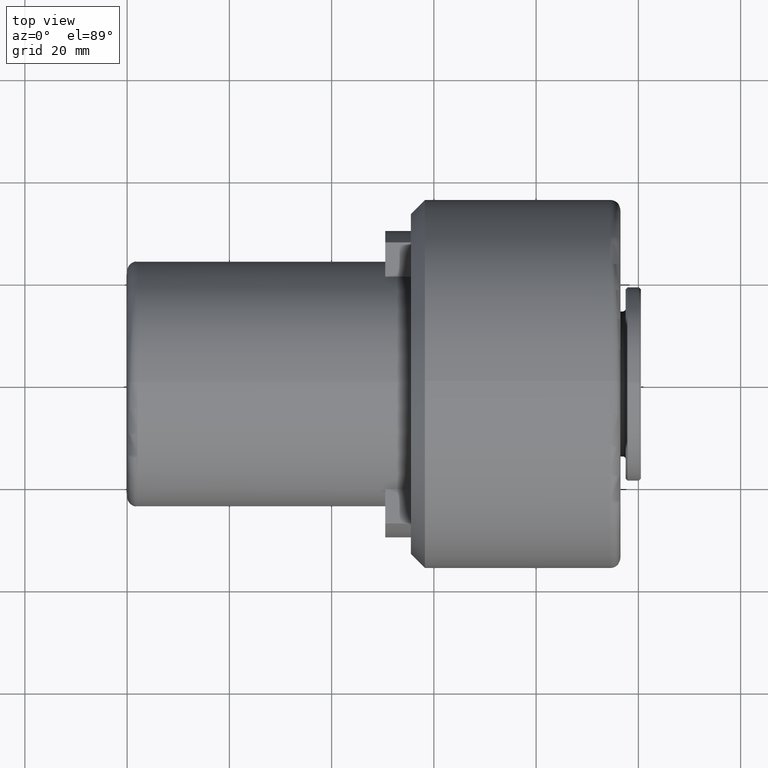
[diagram: clean part render]
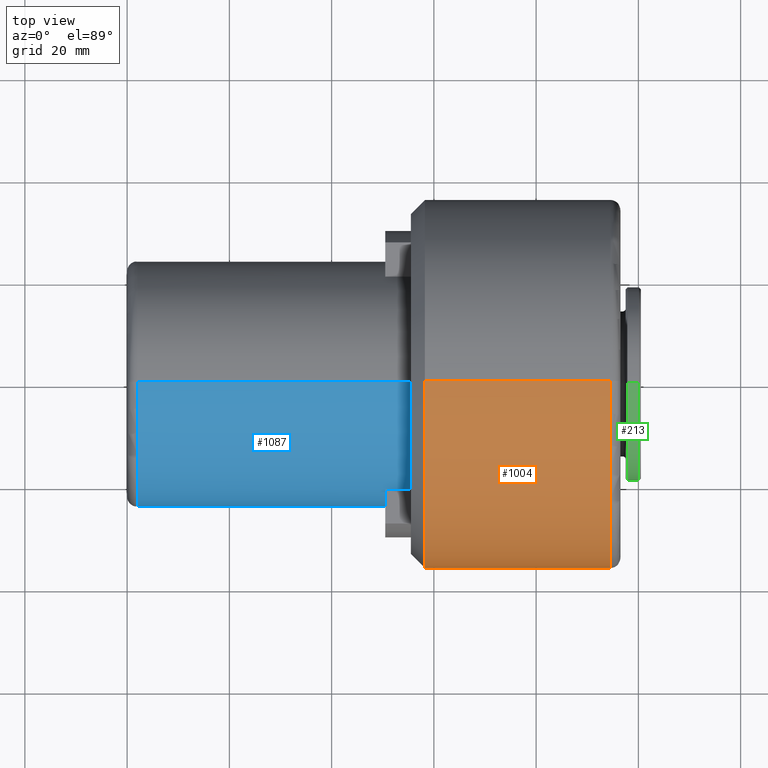
[diagram: same view with three faces highlighted in distinct colors, each labeled with its STEP entity id]
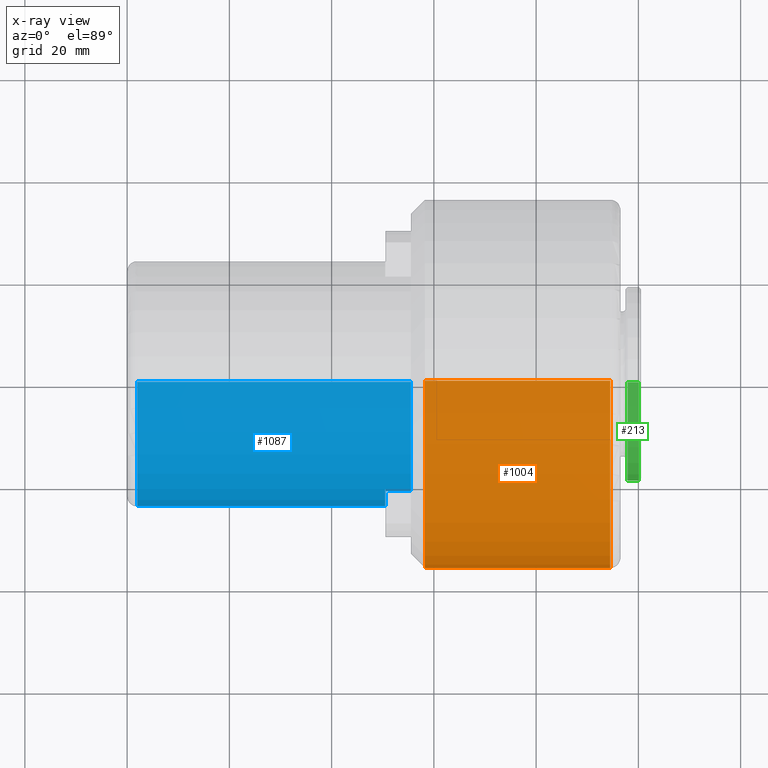
[diagram: x-ray of the same camera — body ghosted, the three highlighted faces saturated]
A machine part, top view with three faces highlighted in distinct colors.
The next image is the same camera in x-ray (body ghosted, the three faces saturated) — at least one of them is partly hidden behind the body in this view.
Their STEP definitions:

[orange] entity #1004 — the highlighted cylindrical surface (partial cylindrical patch) has radius 36 mm, axis along (-1, 0, 0).
#4 = EDGE_CURVE ( 'NONE', #261, #1118, #1346, .T. ) ;
#10 = VECTOR ( 'NONE', #1311, 1000.000000000000000 ) ;
#49 = CARTESIAN_POINT ( 'NONE',  ( 94.50000000000000000, 4.408728476930472400E-015, -36.00000000000001400 ) ) ;
#61 = ORIENTED_EDGE ( 'NONE', *, *, #4, .T. ) ;
#72 = CARTESIAN_POINT ( 'NONE',  ( 73.59999999999999400, 0.0000000000000000000, 0.0000000000000000000 ) ) ;
#101 = CARTESIAN_POINT ( 'NONE',  ( 58.25000000000001400, 0.0000000000000000000, 2.869467403871423700E-016 ) ) ;
#135 = FACE_OUTER_BOUND ( 'NONE', #163, .T. ) ;
#163 = EDGE_LOOP ( 'NONE', ( #1115, #61, #744, #974, #825 ) ) ;
#169 = CIRCLE ( 'NONE', #252, 36.00000000000002800 ) ;
#188 = DIRECTION ( 'NONE',  ( -1.000000000000000000, 0.0000000000000000000, 0.0000000000000000000 ) ) ;
#223 = EDGE_CURVE ( 'NONE', #370, #491, #855, .T. ) ;
#245 = AXIS2_PLACEMENT_3D ( 'NONE', #101, #1290, #564 ) ;
#252 = AXIS2_PLACEMENT_3D ( 'NONE', #919, #1377, #631 ) ;
#261 = VERTEX_POINT ( 'NONE', #49 ) ;
#263 = CARTESIAN_POINT ( 'NONE',  ( 58.25000000000000700, 0.0000000000000000000, 36.00000000000002800 ) ) ;
#323 = EDGE_CURVE ( 'NONE', #491, #1387, #169, .T. ) ;
#370 = VERTEX_POINT ( 'NONE', #509 ) ;
#401 = CARTESIAN_POINT ( 'NONE',  ( 94.50000000000000000, 0.0000000000000000000, 0.0000000000000000000 ) ) ;
#431 = DIRECTION ( 'NONE',  ( -1.000000000000000000, 0.0000000000000000000, 0.0000000000000000000 ) ) ;
#460 = EDGE_CURVE ( 'NONE', #1118, #1387, #614, .T. ) ;
#491 = VERTEX_POINT ( 'NONE', #1001 ) ;
#509 = CARTESIAN_POINT ( 'NONE',  ( 58.25000000000002100, 4.408728476930474800E-015, -36.00000000000002800 ) ) ;
#540 = AXIS2_PLACEMENT_3D ( 'NONE', #401, #431, #1124 ) ;
#564 = DIRECTION ( 'NONE',  ( 1.927470528863117600E-016, 0.0000000000000000000, -1.000000000000000000 ) ) ;
#614 = LINE ( 'NONE', #801, #10 ) ;
#631 = DIRECTION ( 'NONE',  ( 1.927470528863117600E-016, 0.0000000000000000000, -1.000000000000000000 ) ) ;
#744 = ORIENTED_EDGE ( 'NONE', *, *, #460, .T. ) ;
#772 = CARTESIAN_POINT ( 'NONE',  ( 94.50000000000000000, 0.0000000000000000000, 36.00000000000001400 ) ) ;
#776 = VECTOR ( 'NONE', #188, 1000.000000000000000 ) ;
#782 = DIRECTION ( 'NONE',  ( 0.0000000000000000000, 0.0000000000000000000, 1.000000000000000000 ) ) ;
#801 = CARTESIAN_POINT ( 'NONE',  ( 73.59999999999999400, 0.0000000000000000000, 36.00000000000001400 ) ) ;
#823 = AXIS2_PLACEMENT_3D ( 'NONE', #72, #1039, #782 ) ;
#825 = ORIENTED_EDGE ( 'NONE', *, *, #223, .F. ) ;
#855 = CIRCLE ( 'NONE', #245, 36.00000000000002800 ) ;
#919 = CARTESIAN_POINT ( 'NONE',  ( 58.25000000000001400, 0.0000000000000000000, 2.869467403871423700E-016 ) ) ;
#949 = CYLINDRICAL_SURFACE ( 'NONE', #823, 36.00000000000001400 ) ;
#970 = EDGE_CURVE ( 'NONE', #261, #370, #1014, .T. ) ;
#974 = ORIENTED_EDGE ( 'NONE', *, *, #323, .F. ) ;
#1001 = CARTESIAN_POINT ( 'NONE',  ( 58.25000000000001400, -36.00000000000001400, 4.408728476930473200E-015 ) ) ;
#1004 = ADVANCED_FACE ( 'NONE', ( #135 ), #949, .T. ) ;
#1014 = LINE ( 'NONE', #1366, #776 ) ;
#1039 = DIRECTION ( 'NONE',  ( -1.000000000000000000, 0.0000000000000000000, 0.0000000000000000000 ) ) ;
#1115 = ORIENTED_EDGE ( 'NONE', *, *, #970, .F. ) ;
#1118 = VERTEX_POINT ( 'NONE', #772 ) ;
#1124 = DIRECTION ( 'NONE',  ( 0.0000000000000000000, 0.0000000000000000000, 1.000000000000000000 ) ) ;
#1290 = DIRECTION ( 'NONE',  ( -1.000000000000000000, -0.0000000000000000000, -1.043442692316876300E-016 ) ) ;
#1311 = DIRECTION ( 'NONE',  ( -1.000000000000000000, 0.0000000000000000000, 0.0000000000000000000 ) ) ;
#1346 = CIRCLE ( 'NONE', #540, 36.00000000000001400 ) ;
#1366 = CARTESIAN_POINT ( 'NONE',  ( 73.59999999999999400, 4.408728476930472400E-015, -36.00000000000001400 ) ) ;
#1377 = DIRECTION ( 'NONE',  ( -1.000000000000000000, -0.0000000000000000000, -1.043442692316876300E-016 ) ) ;
#1387 = VERTEX_POINT ( 'NONE', #263 ) ;

[blue] entity #1087 — the highlighted cylindrical surface (partial cylindrical patch) has radius 24 mm, axis along (-1, 0, -0).
#2 = CARTESIAN_POINT ( 'NONE',  ( 55.50000000000000700, 0.0000000000000000000, 5.015442563508426400E-031 ) ) ;
#8 = VECTOR ( 'NONE', #928, 1000.000000000000000 ) ;
#64 = AXIS2_PLACEMENT_3D ( 'NONE', #1324, #851, #1052 ) ;
#67 = CARTESIAN_POINT ( 'NONE',  ( 55.50000000000000000, -20.78460969578734200, -11.99999999140761600 ) ) ;
#78 = DIRECTION ( 'NONE',  ( 1.000000000000000000, -0.0000000000000000000, 1.445602896647339200E-016 ) ) ;
#166 = AXIS2_PLACEMENT_3D ( 'NONE', #1307, #1114, #734 ) ;
#177 = ORIENTED_EDGE ( 'NONE', *, *, #1265, .F. ) ;
#203 = DIRECTION ( 'NONE',  ( -2.891205793294678300E-016, 0.0000000000000000000, 1.000000000000000000 ) ) ;
#249 = CIRCLE ( 'NONE', #64, 24.00000000000000000 ) ;
#287 = CARTESIAN_POINT ( 'NONE',  ( 50.50000000381932400, 0.0000000000000000000, -7.228014477715474900E-016 ) ) ;
#289 = CARTESIAN_POINT ( 'NONE',  ( 50.50000000190966200, -20.78460969007333900, 12.00000000065228200 ) ) ;
#303 = CARTESIAN_POINT ( 'NONE',  ( 55.49999999999999300, 0.0000000000000000000, 24.00000000000000000 ) ) ;
#313 = EDGE_LOOP ( 'NONE', ( #177, #639, #342, #864, #447, #1294, #1047, #542 ) ) ;
#317 = CIRCLE ( 'NONE', #434, 24.00000000000000000 ) ;
#342 = ORIENTED_EDGE ( 'NONE', *, *, #1177, .T. ) ;
#369 = EDGE_CURVE ( 'NONE', #552, #1296, #950, .T. ) ;
#433 = CARTESIAN_POINT ( 'NONE',  ( 2.000000000000001800, 2.939152317953648700E-015, -24.00000000000001100 ) ) ;
#434 = AXIS2_PLACEMENT_3D ( 'NONE', #287, #742, #585 ) ;
#436 = VECTOR ( 'NONE', #1100, 1000.000000000000000 ) ;
#447 = ORIENTED_EDGE ( 'NONE', *, *, #1240, .T. ) ;
#480 = EDGE_CURVE ( 'NONE', #722, #1028, #317, .T. ) ;
#515 = DIRECTION ( 'NONE',  ( -1.000000000000000000, 0.0000000000000000000, -1.445602896647339200E-016 ) ) ;
#518 = LINE ( 'NONE', #836, #1335 ) ;
#531 = EDGE_CURVE ( 'NONE', #700, #1046, #249, .T. ) ;
#542 = ORIENTED_EDGE ( 'NONE', *, *, #369, .T. ) ;
#552 = VERTEX_POINT ( 'NONE', #671 ) ;
#575 = LINE ( 'NONE', #67, #8 ) ;
#585 = DIRECTION ( 'NONE',  ( 0.0000000000000000000, 0.0000000000000000000, 1.000000000000000000 ) ) ;
#613 = CARTESIAN_POINT ( 'NONE',  ( 55.50000000000000700, -20.78460969578734200, -11.99999999140761600 ) ) ;
#639 = ORIENTED_EDGE ( 'NONE', *, *, #1286, .T. ) ;
#640 = FACE_OUTER_BOUND ( 'NONE', #313, .T. ) ;
#668 = CARTESIAN_POINT ( 'NONE',  ( 55.49999999999999300, 0.0000000000000000000, 24.00000000000000400 ) ) ;
#671 = CARTESIAN_POINT ( 'NONE',  ( 2.000000000000001800, 0.0000000000000000000, 23.99999999999999300 ) ) ;
#700 = VERTEX_POINT ( 'NONE', #1098 ) ;
#716 = CARTESIAN_POINT ( 'NONE',  ( 55.50000000000000700, 2.939152317953647900E-015, -24.00000000000000000 ) ) ;
#722 = VERTEX_POINT ( 'NONE', #775 ) ;
#731 = AXIS2_PLACEMENT_3D ( 'NONE', #814, #1322, #203 ) ;
#734 = DIRECTION ( 'NONE',  ( 0.0000000000000000000, 0.0000000000000000000, 1.000000000000000000 ) ) ;
#739 = VERTEX_POINT ( 'NONE', #716 ) ;
#742 = DIRECTION ( 'NONE',  ( -1.000000000000000000, 0.0000000000000000000, -1.445602896647339200E-016 ) ) ;
#753 = EDGE_CURVE ( 'NONE', #1046, #552, #1270, .T. ) ;
#775 = CARTESIAN_POINT ( 'NONE',  ( 50.50000000381932400, -20.78460969330693700, -11.99999999570380800 ) ) ;
#814 = CARTESIAN_POINT ( 'NONE',  ( 55.50000000000000000, 0.0000000000000000000, 0.0000000000000000000 ) ) ;
#833 = LINE ( 'NONE', #1235, #1299 ) ;
#836 = CARTESIAN_POINT ( 'NONE',  ( 55.50000000000000000, -20.78460968932014900, 12.00000000260912700 ) ) ;
#851 = DIRECTION ( 'NONE',  ( -1.000000000000000000, 0.0000000000000000000, -1.445602896647339200E-016 ) ) ;
#864 = ORIENTED_EDGE ( 'NONE', *, *, #480, .T. ) ;
#928 = DIRECTION ( 'NONE',  ( -1.000000000000000000, 0.0000000000000000000, -1.445602896647339200E-016 ) ) ;
#950 = CIRCLE ( 'NONE', #166, 24.00000000000000000 ) ;
#955 = VERTEX_POINT ( 'NONE', #613 ) ;
#1028 = VERTEX_POINT ( 'NONE', #289 ) ;
#1046 = VERTEX_POINT ( 'NONE', #668 ) ;
#1047 = ORIENTED_EDGE ( 'NONE', *, *, #753, .T. ) ;
#1052 = DIRECTION ( 'NONE',  ( 0.0000000000000000000, 0.0000000000000000000, 1.000000000000000000 ) ) ;
#1056 = DIRECTION ( 'NONE',  ( -1.000000000000000000, 0.0000000000000000000, -1.445602896647339200E-016 ) ) ;
#1087 = ADVANCED_FACE ( 'NONE', ( #640 ), #1142, .T. ) ;
#1098 = CARTESIAN_POINT ( 'NONE',  ( 55.49999999999999300, -20.78460969007334200, 12.00000000130456000 ) ) ;
#1100 = DIRECTION ( 'NONE',  ( -1.000000000000000000, 0.0000000000000000000, -1.445602896647339200E-016 ) ) ;
#1114 = DIRECTION ( 'NONE',  ( 1.000000000000000000, -0.0000000000000000000, -0.0000000000000000000 ) ) ;
#1136 = CIRCLE ( 'NONE', #1323, 24.00000000000000000 ) ;
#1142 = CYLINDRICAL_SURFACE ( 'NONE', #731, 24.00000000000000000 ) ;
#1173 = DIRECTION ( 'NONE',  ( 0.0000000000000000000, 0.0000000000000000000, 1.000000000000000000 ) ) ;
#1177 = EDGE_CURVE ( 'NONE', #955, #722, #575, .T. ) ;
#1235 = CARTESIAN_POINT ( 'NONE',  ( 55.50000000000000700, 2.939152317953647900E-015, -24.00000000000000000 ) ) ;
#1240 = EDGE_CURVE ( 'NONE', #1028, #700, #518, .T. ) ;
#1265 = EDGE_CURVE ( 'NONE', #739, #1296, #833, .T. ) ;
#1270 = LINE ( 'NONE', #303, #436 ) ;
#1286 = EDGE_CURVE ( 'NONE', #739, #955, #1136, .T. ) ;
#1294 = ORIENTED_EDGE ( 'NONE', *, *, #531, .T. ) ;
#1296 = VERTEX_POINT ( 'NONE', #433 ) ;
#1299 = VECTOR ( 'NONE', #515, 1000.000000000000000 ) ;
#1307 = CARTESIAN_POINT ( 'NONE',  ( 2.000000000000001800, 0.0000000000000000000, -7.733975497063264400E-015 ) ) ;
#1322 = DIRECTION ( 'NONE',  ( -1.000000000000000000, 0.0000000000000000000, -1.445602896647339200E-016 ) ) ;
#1323 = AXIS2_PLACEMENT_3D ( 'NONE', #2, #1056, #1173 ) ;
#1324 = CARTESIAN_POINT ( 'NONE',  ( 55.49999999999999300, 0.0000000000000000000, -7.523163844717393100E-031 ) ) ;
#1335 = VECTOR ( 'NONE', #78, 1000.000000000000000 ) ;

[green] entity #213 — the highlighted cylindrical surface (partial cylindrical patch) has radius 19 mm, axis along (-1, 0, 0).
#11 = EDGE_CURVE ( 'NONE', #1138, #809, #1043, .T. ) ;
#34 = CYLINDRICAL_SURFACE ( 'NONE', #598, 19.00000000000000000 ) ;
#58 = ORIENTED_EDGE ( 'NONE', *, *, #134, .T. ) ;
#134 = EDGE_CURVE ( 'NONE', #809, #1062, #945, .T. ) ;
#146 = AXIS2_PLACEMENT_3D ( 'NONE', #1233, #597, #1351 ) ;
#149 = CARTESIAN_POINT ( 'NONE',  ( 100.0999999999999900, 0.0000000000000000000, 19.00000000000000000 ) ) ;
#212 = LINE ( 'NONE', #657, #519 ) ;
#213 = ADVANCED_FACE ( 'NONE', ( #881 ), #34, .T. ) ;
#276 = ORIENTED_EDGE ( 'NONE', *, *, #579, .F. ) ;
#315 = DIRECTION ( 'NONE',  ( -1.000000000000000000, 0.0000000000000000000, 0.0000000000000000000 ) ) ;
#340 = CARTESIAN_POINT ( 'NONE',  ( 100.0999999999999900, 0.0000000000000000000, 0.0000000000000000000 ) ) ;
#386 = VECTOR ( 'NONE', #315, 1000.000000000000000 ) ;
#416 = DIRECTION ( 'NONE',  ( -1.000000000000000000, 0.0000000000000000000, 0.0000000000000000000 ) ) ;
#519 = VECTOR ( 'NONE', #1245, 1000.000000000000000 ) ;
#579 = EDGE_CURVE ( 'NONE', #1138, #660, #212, .T. ) ;
#597 = DIRECTION ( 'NONE',  ( -1.000000000000000000, -0.0000000000000000000, -0.0000000000000000000 ) ) ;
#598 = AXIS2_PLACEMENT_3D ( 'NONE', #1232, #1021, #1375 ) ;
#605 = AXIS2_PLACEMENT_3D ( 'NONE', #340, #416, #624 ) ;
#624 = DIRECTION ( 'NONE',  ( 0.0000000000000000000, 0.0000000000000000000, 1.000000000000000000 ) ) ;
#657 = CARTESIAN_POINT ( 'NONE',  ( 100.0999999999999900, 2.326828918379971000E-015, -19.00000000000000000 ) ) ;
#660 = VERTEX_POINT ( 'NONE', #797 ) ;
#797 = CARTESIAN_POINT ( 'NONE',  ( 97.89999999999999100, 2.326828918379970200E-015, -18.99999999999998900 ) ) ;
#809 = VERTEX_POINT ( 'NONE', #1293 ) ;
#880 = ORIENTED_EDGE ( 'NONE', *, *, #11, .T. ) ;
#881 = FACE_OUTER_BOUND ( 'NONE', #990, .T. ) ;
#945 = LINE ( 'NONE', #149, #386 ) ;
#990 = EDGE_LOOP ( 'NONE', ( #276, #880, #58, #1184 ) ) ;
#1021 = DIRECTION ( 'NONE',  ( -1.000000000000000000, 0.0000000000000000000, 0.0000000000000000000 ) ) ;
#1043 = CIRCLE ( 'NONE', #605, 19.00000000000000000 ) ;
#1062 = VERTEX_POINT ( 'NONE', #1379 ) ;
#1138 = VERTEX_POINT ( 'NONE', #1280 ) ;
#1184 = ORIENTED_EDGE ( 'NONE', *, *, #1378, .F. ) ;
#1232 = CARTESIAN_POINT ( 'NONE',  ( 100.0999999999999900, 0.0000000000000000000, 0.0000000000000000000 ) ) ;
#1233 = CARTESIAN_POINT ( 'NONE',  ( 97.89999999999999100, 0.0000000000000000000, 0.0000000000000000000 ) ) ;
#1245 = DIRECTION ( 'NONE',  ( -1.000000000000000000, 0.0000000000000000000, 0.0000000000000000000 ) ) ;
#1280 = CARTESIAN_POINT ( 'NONE',  ( 100.0999999999999900, 2.326828918379971000E-015, -19.00000000000000000 ) ) ;
#1293 = CARTESIAN_POINT ( 'NONE',  ( 100.0999999999999900, 0.0000000000000000000, 19.00000000000000000 ) ) ;
#1298 = CIRCLE ( 'NONE', #146, 18.99999999999998900 ) ;
#1351 = DIRECTION ( 'NONE',  ( 0.0000000000000000000, 0.0000000000000000000, -1.000000000000000000 ) ) ;
#1375 = DIRECTION ( 'NONE',  ( 0.0000000000000000000, 0.0000000000000000000, 1.000000000000000000 ) ) ;
#1378 = EDGE_CURVE ( 'NONE', #660, #1062, #1298, .T. ) ;
#1379 = CARTESIAN_POINT ( 'NONE',  ( 97.89999999999999100, 0.0000000000000000000, 18.99999999999998900 ) ) ;